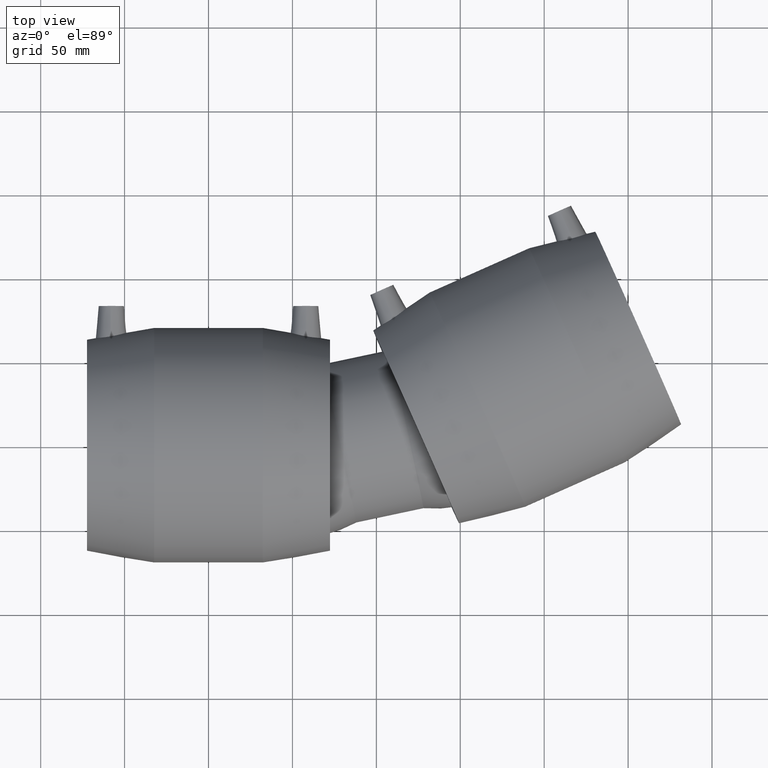
[diagram: clean part render]
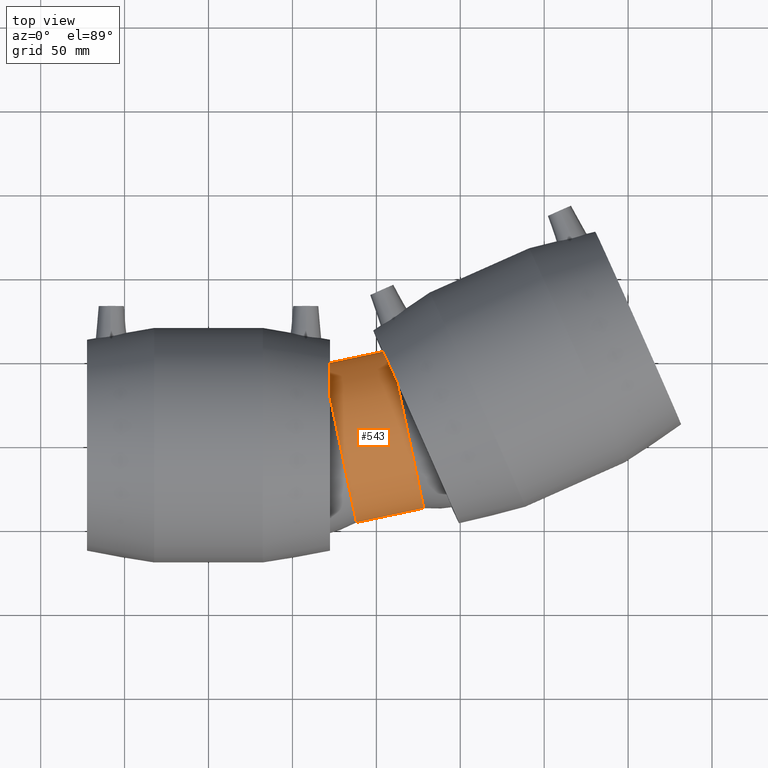
[diagram: same view with one face highlighted and labeled with its STEP entity id]
A machine part, top view. The second image highlights one B-rep face of the part: STEP entity #543.
In plain terms, the highlighted cylindrical surface (bore or boss wall) has radius 48.162 mm, axis along (-0.9781, -0.2079, 0).
Its self-contained STEP definition (entity closure, byte-faithful):
#45=CYLINDRICAL_SURFACE('',#601,48.161967453828);
#65=FACE_BOUND('',#168,.T.);
#115=FACE_OUTER_BOUND('',#167,.T.);
#167=EDGE_LOOP('',(#437));
#168=EDGE_LOOP('',(#438));
#273=CIRCLE('',#596,48.161967453828);
#276=CIRCLE('',#600,48.161967453828);
#322=VERTEX_POINT('',#1021);
#326=VERTEX_POINT('',#1154);
#375=EDGE_CURVE('',#322,#322,#273,.T.);
#380=EDGE_CURVE('',#326,#326,#276,.T.);
#437=ORIENTED_EDGE('',*,*,#380,.F.);
#438=ORIENTED_EDGE('',*,*,#375,.T.);
#543=ADVANCED_FACE('',(#115,#65),#45,.T.);
#596=AXIS2_PLACEMENT_3D('',#1022,#699,#700);
#600=AXIS2_PLACEMENT_3D('',#1155,#707,#708);
#601=AXIS2_PLACEMENT_3D('',#1156,#709,#710);
#699=DIRECTION('center_axis',(-0.978147600733806,-0.20791169081776,0.));
#700=DIRECTION('ref_axis',(0.207911690817759,-0.978147600733806,0.));
#707=DIRECTION('center_axis',(-0.978147600733806,-0.20791169081776,0.));
#708=DIRECTION('ref_axis',(0.20791169081776,-0.978147600733806,0.));
#709=DIRECTION('center_axis',(-0.978147600733806,-0.20791169081776,0.));
#710=DIRECTION('ref_axis',(0.20791169081776,-0.978147600733806,0.));
#1021=CARTESIAN_POINT('',(128.132653030805,-37.3915933556404,0.));
#1022=CARTESIAN_POINT('Origin',(118.11921694437,9.7179195559411,0.));
#1154=CARTESIAN_POINT('',(88.0778598272792,-45.9055024773856,0.));
#1155=CARTESIAN_POINT('Origin',(78.0644237408439,1.20401043419586,0.));
#1156=CARTESIAN_POINT('Origin',(108.105518643488,7.58944227550479,0.));